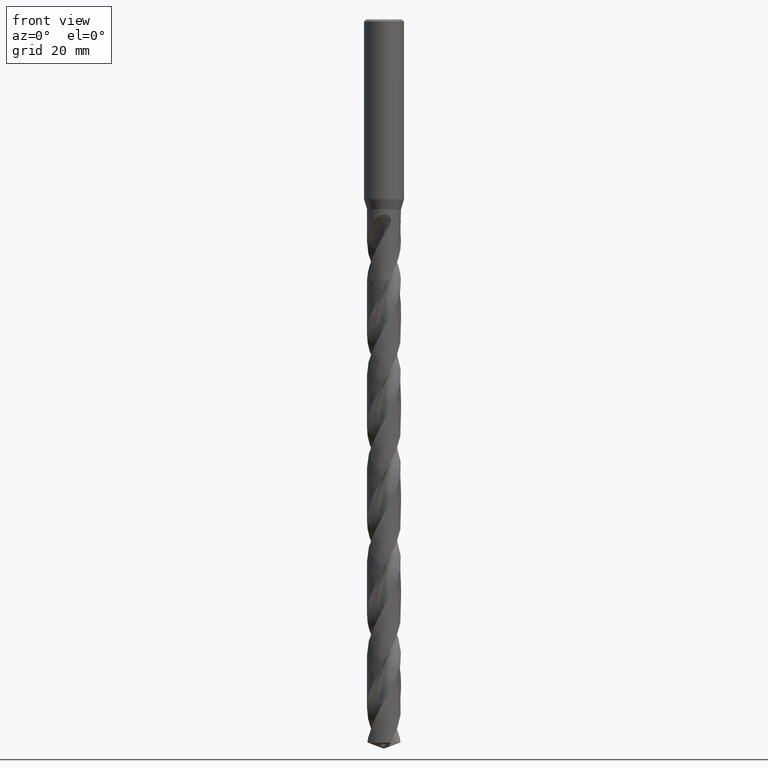
[diagram: clean part render]
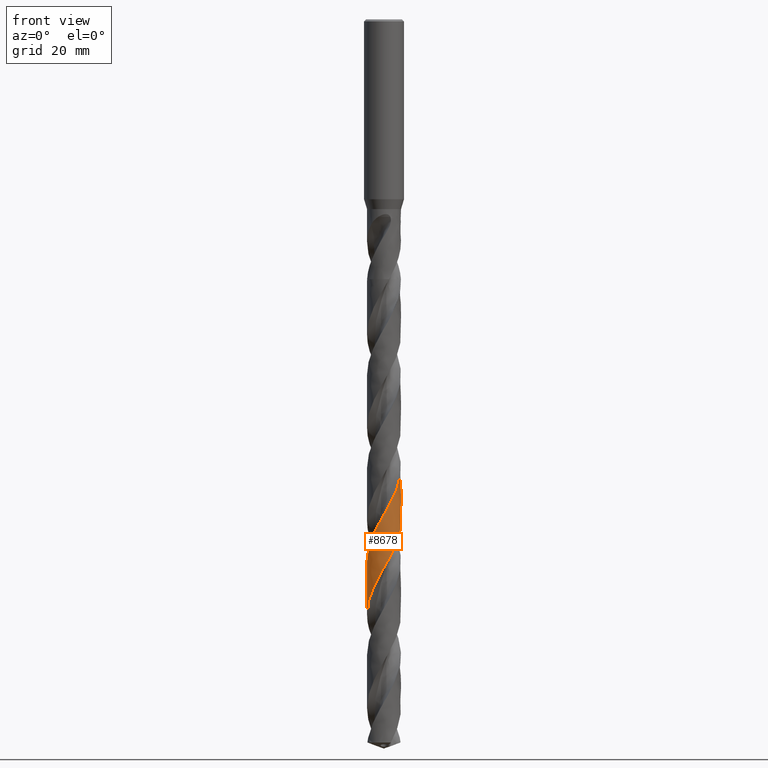
[diagram: same view with one face highlighted and labeled with its STEP entity id]
A machine part, front view. The second image highlights one B-rep face of the part: STEP entity #8678.
In plain terms, the highlighted face is a freeform B-spline surface patch.
Its self-contained STEP definition (entity closure, byte-faithful):
#4107 = VERTEX_POINT('', #4108);
#4108 = CARTESIAN_POINT('', (-3.4, 5.21310176373924E-15, -81.7364126761905));
#4283 = EDGE_CURVE('', #4284, #4107, #4286, .T.);
#4284 = VERTEX_POINT('', #4285);
#4285 = CARTESIAN_POINT('', (-3.4, 7.50227947379985E-15, -119.12152178119));
#4286 = B_SPLINE_CURVE_WITH_KNOTS('', 3, (#4287, #4288, #4289, #4290, #4291, #4292, #4293, #4294, #4295, #4296, #4297, #4298, #4299, #4300, #4301, #4302, #4303, #4304, #4305, #4306, #4307, #4308, #4309, #4310, #4311, #4312, #4313, #4314, #4315, #4316, #4317, #4318, #4319, #4320, #4321, #4322, #4323, #4324, #4325, #4326, #4327, #4328, #4329, #4330, #4331, #4332, #4333, #4334, #4335, #4336, #4337, #4338, #4339, #4340, #4341, #4342, #4343, #4344, #4345, #4346, #4347, #4348, #4349, #4350, #4351, #4352, #4353, #4354, #4355, #4356, #4357, #4358, #4359, #4360, #4361, #4362, #4363, #4364, #4365, #4366, #4367, #4368, #4369, #4370, #4371, #4372, #4373, #4374, #4375, #4376, #4377, #4378, #4379, #4380, #4381, #4382, #4383, #4384, #4385, #4386, #4387, #4388, #4389, #4390, #4391, #4392, #4393, #4394, #4395, #4396, #4397, #4398, #4399, #4400, #4401, #4402, #4403, #4404, #4405, #4406, #4407, #4408, #4409, #4410, #4411, #4412, #4413, #4414, #4415, #4416, #4417, #4418, #4419, #4420, #4421, #4422, #4423, #4424, #4425, #4426, #4427, #4428, #4429, #4430, #4431, #4432, #4433, #4434, #4435, #4436, #4437, #4438, #4439, #4440, #4441, #4442, #4443, #4444, #4445, #4446, #4447, #4448, #4449, #4450, #4451, #4452, #4453, #4454, #4455, #4456, #4457, #4458, #4459, #4460, #4461, #4462, #4463, #4464, #4465, #4466, #4467, #4468, #4469, #4470, #4471, #4472, #4473, #4474, #4475, #4476, #4477, #4478, #4479, #4480, #4481, #4482, #4483, #4484, #4485, #4486, #4487, #4488, #4489, #4490, #4491, #4492, #4493, #4494, #4495, #4496, #4497), .UNSPECIFIED., .F., .U., (4, 3, 3, 3, 3, 3, 3, 3, 3, 3, 3, 3, 3, 3, 3, 3, 3, 3, 3, 3, 3, 3, 3, 3, 3, 3, 3, 3, 3, 3, 3, 3, 3, 3, 3, 3, 3, 3, 3, 3, 3, 3, 3, 3, 3, 3, 3, 3, 3, 3, 3, 3, 3, 3, 3, 3, 3, 3, 3, 3, 3, 3, 3, 3, 3, 3, 3, 3, 3, 3, 4), (0., 0.66658580982563, 1.33294409793713, 1.99908385306702, 2.66501256522958, 3.33073639424071, 3.99626030288841, 4.6615881597968, 5.32672281681218, 5.99166616440956, 6.65641916756324, 7.32098188365318, 7.98535346322285, 8.64953213370615, 9.31351516605572, 9.977298852119, 10.6408784725108, 10.7721836667476, 10.8305783729599, 11.4971489743084, 12.1634921139439, 12.8296166732284, 13.4955300530899, 14.1612383313868, 14.8267463941927, 15.4920580370311, 16.1571760408012, 16.8221022258215, 17.4868374863729, 18.1513818072585, 18.8157342631383, 19.4798930006997, 20.1438552031119, 20.8076170453186, 21.4711736717231, 21.5295469710346, 21.5684694801875, 22.2350540671552, 22.9014100336071, 23.5675463777829, 24.2334705903811, 24.899188825106, 25.5647060321419, 26.2300260611324, 26.895151738506, 27.5600849226494, 28.2248265393677, 28.8893765991891, 29.5537341973101, 30.2178974966643, 30.8818637151456, 31.545629099832, 32.20918882212, 32.2967393413711, 32.3551321229246, 33.021710673829, 33.6880602789081, 34.3541899032365, 35.020107005298, 35.6858177068066, 36.3513269255259, 37.0166384776333, 37.6817551544363, 38.3466787769185, 39.011410230528, 39.6759494817411, 40.340295577193, 41.0044466295966, 41.6683998167285, 42.3321513144244, 43.0541904463072), .UNSPECIFIED.);
#4287 = CARTESIAN_POINT('', (-3.4, 7.90531320183728E-15, -119.12152178119));
#4288 = CARTESIAN_POINT('', (-3.4, -0.11006032610874, -118.928499858597));
#4289 = CARTESIAN_POINT('', (-3.39464964595603, -0.220155190679692, -118.735423754771));
#4290 = CARTESIAN_POINT('', (-3.38397639984471, -0.32970247996415, -118.542405073777));
#4291 = CARTESIAN_POINT('', (-3.37330679676812, -0.439212378133061, -118.349452274686));
#4292 = CARTESIAN_POINT('', (-3.3573118537969, -0.548237735956381, -118.156445132481));
#4293 = CARTESIAN_POINT('', (-3.33607517863566, -0.656203019263993, -117.963495548049));
#4294 = CARTESIAN_POINT('', (-3.31484546806694, -0.7641328952304, -117.77060924166));
#4295 = CARTESIAN_POINT('', (-3.28836544140408, -0.871064585705377, -117.577668506675));
#4296 = CARTESIAN_POINT('', (-3.25677389254169, -0.97643423376019, -117.384785388599));
#4297 = CARTESIAN_POINT('', (-3.22519235235115, -1.08177049914565, -117.19196337876));
#4298 = CARTESIAN_POINT('', (-3.18848471738631, -1.18560514080877, -116.999086927459));
#4299 = CARTESIAN_POINT('', (-3.14684357022811, -1.28739098354539, -116.806268082306));
#4300 = CARTESIAN_POINT('', (-3.1052152346056, -1.38914551031103, -116.613508560818));
#4301 = CARTESIAN_POINT('', (-3.05863296082736, -1.48890984455532, -116.420694648658));
#4302 = CARTESIAN_POINT('', (-3.00734128226978, -1.58615838173744, -116.227938271605));
#4303 = CARTESIAN_POINT('', (-2.95606500687275, -1.68337771467291, -116.035239780304));
#4304 = CARTESIAN_POINT('', (-2.90005318659365, -1.77813767061081, -115.842487001581));
#4305 = CARTESIAN_POINT('', (-2.83960002493059, -1.86993895579888, -115.649791638515));
#4306 = CARTESIAN_POINT('', (-2.77916467171488, -1.96171319792899, -115.457153040142));
#4307 = CARTESIAN_POINT('', (-2.71425628596443, -2.05058258998615, -115.264460296585));
#4308 = CARTESIAN_POINT('', (-2.64521601627747, -2.13607870342577, -115.071824814993));
#4309 = CARTESIAN_POINT('', (-2.57619579471052, -2.22154999024826, -114.879245271469));
#4310 = CARTESIAN_POINT('', (-2.50300665650473, -2.303698766655, -114.686611748174));
#4311 = CARTESIAN_POINT('', (-2.42603352624642, -2.38209179704065, -114.494035315438));
#4312 = CARTESIAN_POINT('', (-2.3490825353919, -2.46046227962358, -114.301514272516));
#4313 = CARTESIAN_POINT('', (-2.26830545807678, -2.53512424434089, -114.108939420211));
#4314 = CARTESIAN_POINT('', (-2.18412738489569, -2.6056837042413, -113.916421488279));
#4315 = CARTESIAN_POINT('', (-2.09997340824638, -2.67622296602831, -113.723958665881));
#4316 = CARTESIAN_POINT('', (-2.01237165368817, -2.74270290168547, -113.531442188805));
#4317 = CARTESIAN_POINT('', (-1.92178333441844, -2.80477250691593, -113.338982484547));
#4318 = CARTESIAN_POINT('', (-1.83122094626178, -2.8668243445803, -113.146577872319));
#4319 = CARTESIAN_POINT('', (-1.73762101424358, -2.92450446967839, -112.954119721253));
#4320 = CARTESIAN_POINT('', (-1.64147641031456, -2.97750821902825, -112.76171824204));
#4321 = CARTESIAN_POINT('', (-1.54535945877197, -3.03049672383916, -112.569372099891));
#4322 = CARTESIAN_POINT('', (-1.44664328498734, -3.07884242374581, -112.376972470109));
#4323 = CARTESIAN_POINT('', (-1.3458475552327, -3.12228992216837, -112.184629484379));
#4324 = CARTESIAN_POINT('', (-1.24508109285304, -3.16572480503438, -111.992342347982));
#4325 = CARTESIAN_POINT('', (-1.1421777282993, -3.20428958311069, -111.800001682075));
#4326 = CARTESIAN_POINT('', (-1.03767868519966, -3.23778055869795, -111.607717734853));
#4327 = CARTESIAN_POINT('', (-0.933210422970709, -3.2712616693012, -111.415490426114));
#4328 = CARTESIAN_POINT('', (-0.827087230274705, -3.2996912809931, -111.223209446193));
#4329 = CARTESIAN_POINT('', (-0.719866439253546, -3.32291924512721, -111.03098534661));
#4330 = CARTESIAN_POINT('', (-0.612677838914171, -3.3461402355765, -110.838818958081));
#4331 = CARTESIAN_POINT('', (-0.504331246142023, -3.36417595083137, -110.646598738088));
#4332 = CARTESIAN_POINT('', (-0.395394829386861, -3.37693099261668, -110.454435533144));
#4333 = CARTESIAN_POINT('', (-0.28649190273322, -3.38968211314538, -110.262331404545));
#4334 = CARTESIAN_POINT('', (-0.176938024452113, -3.3971630204216, -110.070173361897));
#4335 = CARTESIAN_POINT('', (-0.0673070987560432, -3.39933372213721, -109.878072391263));
#4336 = CARTESIAN_POINT('', (-0.0456139822851335, -3.39976324770074, -109.840060592096));
#4337 = CARTESIAN_POINT('', (-0.0239164068278911, -3.39998511604062, -109.802048423758));
#4338 = CARTESIAN_POINT('', (-0.00221885828383361, -3.39999927598049, -109.76403673007));
#4339 = CARTESIAN_POINT('', (0.00743058460471498, -3.40000557326015, -109.747131978521));
#4340 = CARTESIAN_POINT('', (0.0170800911525681, -3.39997079147597, -109.730227198097));
#4341 = CARTESIAN_POINT('', (0.0267292698135637, -3.39989493163174, -109.713322464764));
#4342 = CARTESIAN_POINT('', (0.136873822972103, -3.39902899796641, -109.52035637255));
#4343 = CARTESIAN_POINT('', (0.2470110350456, -3.3928040566323, -109.32733600693));
#4344 = CARTESIAN_POINT('', (0.356557255405211, -3.38125227151396, -109.13437314252));
#4345 = CARTESIAN_POINT('', (0.466066094021772, -3.3697044283469, -108.941476125094));
#4346 = CARTESIAN_POINT('', (0.575047505542613, -3.35282673941069, -108.748524684755));
#4347 = CARTESIAN_POINT('', (0.682924867343296, -3.33070767639015, -108.555630880783));
#4348 = CARTESIAN_POINT('', (0.7907668421636, -3.30859586907957, -108.36280035171));
#4349 = CARTESIAN_POINT('', (0.897567101936991, -3.28123351061016, -108.169915298512));
#4350 = CARTESIAN_POINT('', (1.0027612464826, -3.24876436242345, -107.977087958989));
#4351 = CARTESIAN_POINT('', (1.10792204165168, -3.21630550783106, -107.784321750926));
#4352 = CARTESIAN_POINT('', (1.21153745768228, -3.17872467821462, -107.591500983835));
#4353 = CARTESIAN_POINT('', (1.31306035098218, -3.13621946213567, -107.398737943303));
#4354 = CARTESIAN_POINT('', (1.41455197519379, -3.09372733767882, -107.206034273857));
#4355 = CARTESIAN_POINT('', (1.51400985760778, -3.04628979165857, -107.01327607053));
#4356 = CARTESIAN_POINT('', (1.61090901285292, -2.99415633397944, -106.820575549132));
#4357 = CARTESIAN_POINT('', (1.70777902513472, -2.94203855572952, -106.627932983495));
#4358 = CARTESIAN_POINT('', (1.80214675975931, -2.88519814310793, -106.435235960693));
#4359 = CARTESIAN_POINT('', (1.89351412581562, -2.82393418041864, -106.242596526828));
#4360 = CARTESIAN_POINT('', (1.98485452544422, -2.76268829935184, -106.05001394912));
#4361 = CARTESIAN_POINT('', (2.07324827077654, -2.69698663989028, -105.857377031797));
#4362 = CARTESIAN_POINT('', (2.15822870063941, -2.62717507519698, -105.664797573484));
#4363 = CARTESIAN_POINT('', (2.24318439693353, -2.55738382917162, -105.472274165456));
#4364 = CARTESIAN_POINT('', (2.32477732257817, -2.48344516486581, -105.279696563125));
#4365 = CARTESIAN_POINT('', (2.40257654166428, -2.40574852414887, -105.08717626673));
#4366 = CARTESIAN_POINT('', (2.48035332360561, -2.32807429099331, -104.894711492817));
#4367 = CARTESIAN_POINT('', (2.55438331273158, -2.24659956440051, -104.702192682213));
#4368 = CARTESIAN_POINT('', (2.6242753118049, -2.16175370656587, -104.509731017519));
#4369 = CARTESIAN_POINT('', (2.69414724234566, -2.07693221106, -104.317324615563));
#4370 = CARTESIAN_POINT('', (2.75992398585721, -1.98869242542605, -104.124864328903));
#4371 = CARTESIAN_POINT('', (2.82125776897569, -1.89749956547934, -103.93246103986));
#4372 = CARTESIAN_POINT('', (2.88257393447593, -1.80633289992195, -103.74011301706));
#4373 = CARTESIAN_POINT('', (2.93948535037092, -1.71216182342775, -103.547711235461));
#4374 = CARTESIAN_POINT('', (2.99169097445581, -1.61548293502582, -103.35536633616));
#4375 = CARTESIAN_POINT('', (3.04388152590813, -1.51883195942807, -103.163076970033));
#4376 = CARTESIAN_POINT('', (3.09139944366958, -1.41961824187973, -102.970733921859));
#4377 = CARTESIAN_POINT('', (3.133993293089, -1.31836491112028, -102.778447697516));
#4378 = CARTESIAN_POINT('', (3.17657472258161, -1.21714110478689, -102.586217541851));
#4379 = CARTESIAN_POINT('', (3.21425977936056, -1.11381988044882, -102.393933705968));
#4380 = CARTESIAN_POINT('', (3.24684902622502, -1.0089456877859, -102.201706718905));
#4381 = CARTESIAN_POINT('', (3.27942862941226, -0.904102529067012, -102.009536614869));
#4382 = CARTESIAN_POINT('', (3.30693433480173, -0.797646571346202, -101.817312736362));
#4383 = CARTESIAN_POINT('', (3.32922054088451, -0.690138094987558, -101.625145830031));
#4384 = CARTESIAN_POINT('', (3.351500021782, -0.582662060867877, -101.433036912846));
#4385 = CARTESIAN_POINT('', (3.36857595629652, -0.474072486966904, -101.240874075601));
#4386 = CARTESIAN_POINT('', (3.38035778379481, -0.364940068420678, -101.048768341683));
#4387 = CARTESIAN_POINT('', (3.39213596869567, -0.255841390435272, -100.856722001256));
#4388 = CARTESIAN_POINT('', (3.39863003225758, -0.146138170573308, -100.664621647261));
#4389 = CARTESIAN_POINT('', (3.3998050797502, -0.0364063141107068, -100.472578467246));
#4390 = CARTESIAN_POINT('', (3.39990844907282, -0.0267531658390987, -100.455684364193));
#4391 = CARTESIAN_POINT('', (3.39997070583853, -0.0170995359703147, -100.438790234737));
#4392 = CARTESIAN_POINT('', (3.39999184701573, -0.00744581940258894, -100.4218961534));
#4393 = CARTESIAN_POINT('', (3.40000594366048, -0.00100885462759771, -100.410631413473));
#4394 = CARTESIAN_POINT('', (3.40000176028553, 0.00542816466162031, -100.399366666988));
#4395 = CARTESIAN_POINT('', (3.39997929683326, 0.0118651213738368, -100.388101936031));
#4396 = CARTESIAN_POINT('', (3.39959458907977, 0.122104060864491, -100.195182820694));
#4397 = CARTESIAN_POINT('', (3.39384198367998, 0.232358767537895, -100.00220902303));
#4398 = CARTESIAN_POINT('', (3.38275116328019, 0.342044686155215, -99.809293109217));
#4399 = CARTESIAN_POINT('', (3.37166414673236, 0.451692985463932, -99.6164433603533));
#4400 = CARTESIAN_POINT('', (3.3552362383185, 0.56083570095516, -99.4235388664109));
#4401 = CARTESIAN_POINT('', (3.33355362705547, 0.668894771653575, -99.230692298584));
#4402 = CARTESIAN_POINT('', (3.31187816209963, 0.77691822748508, -99.0379092904824));
#4403 = CARTESIAN_POINT('', (3.28493910184324, 0.883920363589971, -98.8450715299651));
#4404 = CARTESIAN_POINT('', (3.25287820032418, 0.989334834045458, -98.6522916839855));
#4405 = CARTESIAN_POINT('', (3.2208275086213, 1.09471573519022, -98.4595732288806));
#4406 = CARTESIAN_POINT('', (3.18363998380628, 1.19857000088782, -98.2668000642874));
#4407 = CARTESIAN_POINT('', (3.14151153763768, 1.30034812988267, -98.074084754609));
#4408 = CARTESIAN_POINT('', (3.09939612227286, 1.40209477775375, -97.8814290539505));
#4409 = CARTESIAN_POINT('', (3.05231882111048, 1.5018245934524, -97.688718729629));
#4410 = CARTESIAN_POINT('', (3.00052783062822, 1.59900992417981, -97.4960661605912));
#4411 = CARTESIAN_POINT('', (2.94875247952999, 1.69616590774287, -97.3034717670678));
#4412 = CARTESIAN_POINT('', (2.89223665301332, 1.79083453099607, -97.1108228689602));
#4413 = CARTESIAN_POINT('', (2.83127849435405, 1.88251483059451, -96.9182315968358));
#4414 = CARTESIAN_POINT('', (2.77033839625046, 1.97416796734564, -96.7256973852504));
#4415 = CARTESIAN_POINT('', (2.70492355022435, 2.06288724367997, -96.5331088094233));
#4416 = CARTESIAN_POINT('', (2.63537924549418, 2.1482030240223, -96.3405777133163));
#4417 = CARTESIAN_POINT('', (2.56585525587174, 2.23349388213303, -96.1481028589098));
#4418 = CARTESIAN_POINT('', (2.49216401440269, 2.31543253839993, -95.9555737874641));
#4419 = CARTESIAN_POINT('', (2.41469469650567, 2.39358507738234, -95.7631020476573));
#4420 = CARTESIAN_POINT('', (2.33724779891169, 2.47171499833151, -95.5706860108675));
#4421 = CARTESIAN_POINT('', (2.25597998760722, 2.54610640046618, -95.378215894212));
#4422 = CARTESIAN_POINT('', (2.17132061271124, 2.61636518796886, -95.1858029769501));
#4423 = CARTESIAN_POINT('', (2.08668562820343, 2.68660373389637, -94.9934454939003));
#4424 = CARTESIAN_POINT('', (1.99861163327056, 2.75275303611592, -94.8010340386783));
#4425 = CARTESIAN_POINT('', (1.90756400082745, 2.8144625744087, -94.6086796866815));
#4426 = CARTESIAN_POINT('', (1.81654260534843, 2.87615433002116, -94.4163807649479));
#4427 = CARTESIAN_POINT('', (1.72249607081979, 2.93344494828621, -94.2240279271626));
#4428 = CARTESIAN_POINT('', (1.62592121744373, 2.98603084288598, -94.0317321554204));
#4429 = CARTESIAN_POINT('', (1.52937433330825, 3.03860150797738, -93.8394920748495));
#4430 = CARTESIAN_POINT('', (1.43024426493502, 3.08650085693175, -93.6471980579526));
#4431 = CARTESIAN_POINT('', (1.32905430420926, 3.12947514073253, -93.4549611545691));
#4432 = CARTESIAN_POINT('', (1.22789393761268, 3.17243685622617, -93.2627804730055));
#4433 = CARTESIAN_POINT('', (1.12461625129976, 3.21050130718831, -93.0705457523966));
#4434 = CARTESIAN_POINT('', (1.01976577027006, 3.2434669373659, -92.8783682641489));
#4435 = CARTESIAN_POINT('', (0.914946402107235, 3.27642278546854, -92.6862478017971));
#4436 = CARTESIAN_POINT('', (0.808494968583843, 3.30430178605987, -92.4940731806085));
#4437 = CARTESIAN_POINT('', (0.700972037476663, 3.3269562970794, -92.3019558926381));
#4438 = CARTESIAN_POINT('', (0.593481629467355, 3.34960395565478, -92.1098967155219));
#4439 = CARTESIAN_POINT('', (0.484859070109891, 3.3670432130078, -91.9177833172498));
#4440 = CARTESIAN_POINT('', (0.375675839145722, 3.37918150798137, -91.7257272951133));
#4441 = CARTESIAN_POINT('', (0.266526437732854, 3.39131604200128, -91.53373078));
#4442 = CARTESIAN_POINT('', (0.15675471349458, 3.39815979657419, -91.3416800385243));
#4443 = CARTESIAN_POINT('', (0.0469378458908526, 3.39967599024164, -91.1496866602353));
#4444 = CARTESIAN_POINT('', (0.0324485339897481, 3.39987603786119, -91.1243549238484));
#4445 = CARTESIAN_POINT('', (0.0179578218246788, 3.3999834557675, -91.0990230874916));
#4446 = CARTESIAN_POINT('', (0.0034670441010557, 3.39999823229443, -91.0736914039823));
#4447 = CARTESIAN_POINT('', (-0.00619773944783694, 3.40000808766155, -91.056796159109));
#4448 = CARTESIAN_POINT('', (-0.0158626062729844, 3.39997673324266, -91.039900887577));
#4449 = CARTESIAN_POINT('', (-0.0255271602587759, 3.39990416983908, -91.0230056643375));
#4450 = CARTESIAN_POINT('', (-0.135852173378516, 3.39907582758301, -90.8301394722396));
#4451 = CARTESIAN_POINT('', (-0.246171377798619, 3.39287093446242, -90.6372183933232));
#4452 = CARTESIAN_POINT('', (-0.355898943401339, 3.38132162653693, -90.4443553912766));
#4453 = CARTESIAN_POINT('', (-0.465588821520677, 3.36977628538449, -90.2515586307542));
#4454 = CARTESIAN_POINT('', (-0.574750459675094, 3.35288357936067, -90.0587069566974));
#4455 = CARTESIAN_POINT('', (-0.68280465645771, 3.33073232204569, -89.8659133689172));
#4456 = CARTESIAN_POINT('', (-0.790823181510138, 3.30858837748391, -89.6731834277241));
#4457 = CARTESIAN_POINT('', (-0.897796857286214, 3.28117667550689, -89.4803985921976));
#4458 = CARTESIAN_POINT('', (-1.00315838626338, 3.24864175495999, -89.2876718078002));
#4459 = CARTESIAN_POINT('', (-1.1084863006554, 3.2161172143674, -89.0950065110347));
#4460 = CARTESIAN_POINT('', (-1.21226340034307, 3.17845410136986, -88.9022863805656));
#4461 = CARTESIAN_POINT('', (-1.31393947140642, 3.13585125053473, -88.7096242266731));
#4462 = CARTESIAN_POINT('', (-1.41558402804068, 3.09326160442426, -88.5170217882842));
#4463 = CARTESIAN_POINT('', (-1.51518716232656, 3.04571084696029, -88.3243646114991));
#4464 = CARTESIAN_POINT('', (-1.61222079190436, 2.99345020305187, -88.1317653047719));
#4465 = CARTESIAN_POINT('', (-1.70922505346046, 2.94120537625481, -87.9392242898004));
#4466 = CARTESIAN_POINT('', (-1.80371720544274, 2.88422343004413, -87.7466286573289));
#4467 = CARTESIAN_POINT('', (-1.89519617488561, 2.82280560058588, -87.5540907662329));
#4468 = CARTESIAN_POINT('', (-1.98664797364858, 2.76140601318035, -87.3616100618919));
#4469 = CARTESIAN_POINT('', (-2.07514126618042, 2.69553765831478, -87.169074875036));
#4470 = CARTESIAN_POINT('', (-2.16020665558941, 2.62554893406069, -86.9765972909485));
#4471 = CARTESIAN_POINT('', (-2.24524712863613, 2.55558071008786, -86.7841760851512));
#4472 = CARTESIAN_POINT('', (-2.32691112813739, 2.48145385559987, -86.5917005319249));
#4473 = CARTESIAN_POINT('', (-2.40476534463138, 2.40356061651458, -86.3992824476882));
#4474 = CARTESIAN_POINT('', (-2.48259696344677, 2.32568998643444, -86.2069202140172));
#4475 = CARTESIAN_POINT('', (-2.55666644186113, 2.24400969352013, -86.0145037515473));
#4476 = CARTESIAN_POINT('', (-2.62658066627173, 2.15895206143342, -85.8221446464644));
#4477 = CARTESIAN_POINT('', (-2.69647468484629, 2.07391901176297, -85.6298411348829));
#4478 = CARTESIAN_POINT('', (-2.76225676663862, 1.98546079211173, -85.4374834774697));
#4479 = CARTESIAN_POINT('', (-2.82357774829002, 1.89404559062381, -85.2451831080433));
#4480 = CARTESIAN_POINT('', (-2.88488099941347, 1.80265682119455, -85.052938340908));
#4481 = CARTESIAN_POINT('', (-2.9417616263641, 1.70825927352961, -84.8606394532966));
#4482 = CARTESIAN_POINT('', (-2.99391776189884, 1.61135236214388, -84.6683978492699));
#4483 = CARTESIAN_POINT('', (-3.04605873766981, 1.51447361783512, -84.4762121224142));
#4484 = CARTESIAN_POINT('', (-3.09350839311872, 1.41503046604869, -84.2839722216399));
#4485 = CARTESIAN_POINT('', (-3.1360150298586, 1.31354852689233, -84.0917896836236));
#4486 = CARTESIAN_POINT('', (-3.17850918722357, 1.21209638146381, -83.8996635678071));
#4487 = CARTESIAN_POINT('', (-3.21608784399081, 1.10854792128336, -83.7074831719573));
#4488 = CARTESIAN_POINT('', (-3.24855174534052, 1.00344982826508, -83.5153602385161));
#4489 = CARTESIAN_POINT('', (-3.28100597497679, 0.898383046290656, -83.3232945427413));
#4490 = CARTESIAN_POINT('', (-3.30836715852917, 0.791707184567166, -83.1311744896937));
#4491 = CARTESIAN_POINT('', (-3.33049015650675, 0.683984880982104, -82.9391119596156));
#4492 = CARTESIAN_POINT('', (-3.35260643416869, 0.576295300262275, -82.7471077724812));
#4493 = CARTESIAN_POINT('', (-3.36950036075725, 0.467498346248501, -82.5550492005646));
#4494 = CARTESIAN_POINT('', (-3.38108208855323, 0.358167433563763, -82.3630481627467));
#4495 = CARTESIAN_POINT('', (-3.39368087094776, 0.239235577956832, -82.1541864680493));
#4496 = CARTESIAN_POINT('', (-3.4, 0.11960379053183, -81.9452706575994));
#4497 = CARTESIAN_POINT('', (-3.4, 4.28567522539514E-15, -81.7364126761905));
#4990 = VERTEX_POINT('', #4991);
#4991 = CARTESIAN_POINT('', (-3.4, 4.56515206482374E-15, -71.1545910543705));
#5103 = EDGE_CURVE('', #4990, #4107, #5104, .T.);
#5104 = LINE('', #5105, #5106);
#5105 = CARTESIAN_POINT('', (-3.4, 4.56515206482374E-15, -71.1545910543705));
#5106 = VECTOR('', #5107, 10.5818216218199);
#5107 = DIRECTION('', (0., 6.47949698915501E-16, -10.5818216218199));
#5290 = VERTEX_POINT('', #5291);
#5291 = CARTESIAN_POINT('', (-3.4, 6.85002689326418E-15, -108.469428769723));
#5496 = EDGE_CURVE('', #5290, #4990, #5497, .T.);
#5497 = B_SPLINE_CURVE_WITH_KNOTS('', 3, (#5498, #5499, #5500, #5501, #5502, #5503, #5504, #5505, #5506, #5507, #5508, #5509, #5510, #5511, #5512, #5513, #5514, #5515, #5516, #5517, #5518, #5519, #5520, #5521, #5522, #5523, #5524, #5525, #5526, #5527, #5528, #5529, #5530, #5531, #5532, #5533, #5534, #5535, #5536, #5537, #5538, #5539, #5540, #5541, #5542, #5543, #5544, #5545, #5546, #5547, #5548, #5549, #5550, #5551, #5552, #5553, #5554, #5555, #5556, #5557, #5558, #5559, #5560, #5561, #5562, #5563, #5564, #5565, #5566, #5567, #5568, #5569, #5570, #5571, #5572, #5573, #5574, #5575, #5576, #5577, #5578, #5579, #5580, #5581, #5582, #5583, #5584, #5585, #5586, #5587, #5588, #5589, #5590, #5591, #5592, #5593, #5594, #5595, #5596, #5597, #5598, #5599, #5600, #5601, #5602, #5603, #5604, #5605, #5606, #5607, #5608, #5609, #5610, #5611, #5612, #5613, #5614, #5615, #5616, #5617, #5618, #5619, #5620, #5621, #5622, #5623, #5624, #5625, #5626, #5627, #5628, #5629, #5630, #5631, #5632, #5633, #5634, #5635, #5636, #5637, #5638, #5639, #5640, #5641, #5642, #5643, #5644, #5645, #5646, #5647, #5648, #5649, #5650, #5651, #5652, #5653, #5654, #5655, #5656, #5657, #5658, #5659, #5660, #5661, #5662, #5663, #5664, #5665, #5666, #5667, #5668, #5669, #5670, #5671, #5672, #5673, #5674, #5675, #5676, #5677, #5678, #5679, #5680, #5681, #5682, #5683, #5684, #5685, #5686, #5687, #5688, #5689, #5690, #5691, #5692, #5693, #5694, #5695, #5696, #5697, #5698, #5699, #5700, #5701, #5702, #5703, #5704, #5705), .UNSPECIFIED., .F., .U., (4, 3, 3, 3, 3, 3, 3, 3, 3, 3, 3, 3, 3, 3, 3, 3, 3, 3, 3, 3, 3, 3, 3, 3, 3, 3, 3, 3, 3, 3, 3, 3, 3, 3, 3, 3, 3, 3, 3, 3, 3, 3, 3, 3, 3, 3, 3, 3, 3, 3, 3, 3, 3, 3, 3, 3, 3, 3, 3, 3, 3, 3, 3, 3, 3, 3, 3, 3, 3, 4), (0., 0.66658661883252, 1.33294570828546, 1.99908619455446, 2.66501551221135, 3.33073976862755, 3.99626387643609, 4.66159165573997, 5.32672591087007, 5.99166848516749, 6.65642029621203, 7.32098135304774, 7.98535075619746, 8.64952668056032, 9.31350634077815, 9.97728595357775, 10.6408607128706, 10.7721656876321, 11.4387583734093, 12.1051222458404, 12.7712662964767, 13.43719800759, 14.1029235230777, 14.7684477821713, 15.4337746225566, 16.0989068577608, 16.7638463323236, 17.4285939571962, 18.0931497269334, 18.7575127194724, 19.4216810786186, 20.0856519842102, 20.7494216434225, 21.4129851958297, 21.5005357805068, 21.5589163358506, 22.2255046416933, 22.8918632907549, 23.558001261792, 24.2239260204971, 24.8896436901937, 25.5551591852654, 26.2204763139131, 26.8855978550846, 27.5505256130792, 28.2152604522499, 28.8798023133456, 29.5441502122572, 30.2083022217099, 30.8722554584352, 31.5360060428173, 32.1995490029345, 32.2579221839238, 32.3163127669643, 32.9829016559546, 33.6492598368762, 34.3153963116623, 34.9813185605525, 35.6470327133799, 36.3125436833602, 36.9778552700069, 37.642970236038, 38.3078903617809, 38.9726164795023, 39.6371484891961, 40.3014853575112, 40.9656251214448, 41.6295648561054, 42.2933006097172, 42.9931814944264), .UNSPECIFIED.);
#5498 = CARTESIAN_POINT('', (-3.4, 6.23907007522265E-15, -108.469428769723));
#5499 = CARTESIAN_POINT('', (-3.4, -0.110080135777376, -108.276417833426));
#5500 = CARTESIAN_POINT('', (-3.39464771182658, -0.22019707393791, -108.083353942724));
#5501 = CARTESIAN_POINT('', (-3.38396999892869, -0.329768170615356, -107.890348712113));
#5502 = CARTESIAN_POINT('', (-3.37329593070851, -0.439301866836593, -107.697409360953));
#5503 = CARTESIAN_POINT('', (-3.35729399860667, -0.548352770020721, -107.504416781665));
#5504 = CARTESIAN_POINT('', (-3.33604724159104, -0.656345032641384, -107.311483098507));
#5505 = CARTESIAN_POINT('', (-3.31480745470428, -0.764301867738324, -107.118612708427));
#5506 = CARTESIAN_POINT('', (-3.28831431497242, -0.871261695963828, -106.925688926498));
#5507 = CARTESIAN_POINT('', (-3.25670606349552, -0.976660440476404, -106.732824162338));
#5508 = CARTESIAN_POINT('', (-3.22510783193294, -1.08202577325819, -106.54002053691));
#5509 = CARTESIAN_POINT('', (-3.18838003021736, -1.18589006220038, -106.347163469753));
#5510 = CARTESIAN_POINT('', (-3.14671472875168, -1.2877058731936, -106.154365433316));
#5511 = CARTESIAN_POINT('', (-3.105062257384, -1.38949033179556, -105.961626765649));
#5512 = CARTESIAN_POINT('', (-3.05845200942594, -1.48928454394976, -105.768834703636));
#5513 = CARTESIAN_POINT('', (-3.00712809800835, -1.58656251127041, -105.5761015939));
#5514 = CARTESIAN_POINT('', (-2.95581961701756, -1.6838112321733, -105.383426428971));
#5515 = CARTESIAN_POINT('', (-2.89977147104846, -1.77859984873674, -105.190697995308));
#5516 = CARTESIAN_POINT('', (-2.8392776006956, -1.87042848197632, -104.998028363849));
#5517 = CARTESIAN_POINT('', (-2.77880157593385, -1.96223002592186, -104.805415569611));
#5518 = CARTESIAN_POINT('', (-2.71384820831134, -2.05112527659861, -104.612749688943));
#5519 = CARTESIAN_POINT('', (-2.64475860766292, -2.13664501197388, -104.42014241107));
#5520 = CARTESIAN_POINT('', (-2.575689103136, -2.22213987218739, -104.227591156958));
#5521 = CARTESIAN_POINT('', (-2.50244628668077, -2.3043100205344, -104.034987031308));
#5522 = CARTESIAN_POINT('', (-2.42541532414197, -2.38272123955306, -103.842441284585));
#5523 = CARTESIAN_POINT('', (-2.34840656066888, -2.46110986173862, -103.649951026403));
#5524 = CARTESIAN_POINT('', (-2.26756735272704, -2.53578696794002, -103.457408117433));
#5525 = CARTESIAN_POINT('', (-2.18332334579294, -2.60635745202293, -103.264923366591));
#5526 = CARTESIAN_POINT('', (-2.09910350735312, -2.6769076903649, -103.072493837085));
#5527 = CARTESIAN_POINT('', (-2.01143171177239, -2.74339477827105, -102.880011853974));
#5528 = CARTESIAN_POINT('', (-1.92077004216958, -2.80546652895803, -102.687587841506));
#5529 = CARTESIAN_POINT('', (-1.8301343884343, -2.86752046781285, -102.495219046172));
#5530 = CARTESIAN_POINT('', (-1.73645735232832, -2.92519802867923, -102.302797938651));
#5531 = CARTESIAN_POINT('', (-1.64023295202384, -2.9781933891363, -102.110434680648));
#5532 = CARTESIAN_POINT('', (-1.54403630200777, -3.03117346618778, -101.918126898552));
#5533 = CARTESIAN_POINT('', (-1.445237114323, -3.07950523775341, -101.72576685486));
#5534 = CARTESIAN_POINT('', (-1.34435639326077, -3.12293225797469, -101.533464641856));
#5535 = CARTESIAN_POINT('', (-1.2435050508536, -3.16634663130533, -101.34121843143));
#5536 = CARTESIAN_POINT('', (-1.14051421528311, -3.20488459761458, -101.148919881159));
#5537 = CARTESIAN_POINT('', (-1.03592650685006, -3.23834159291536, -100.956679283962));
#5538 = CARTESIAN_POINT('', (-0.931369704109963, -3.271788701666, -100.764495493908));
#5539 = CARTESIAN_POINT('', (-0.825156326722617, -3.30017727436541, -100.572259137483));
#5540 = CARTESIAN_POINT('', (-0.717844966533272, -3.3233565267698, -100.380080997532));
#5541 = CARTESIAN_POINT('', (-0.610565937696585, -3.34652879560243, -100.187960758061));
#5542 = CARTESIAN_POINT('', (-0.502128400271689, -3.36450813200511, -99.9957876789936));
#5543 = CARTESIAN_POINT('', (-0.393101569596632, -3.37719871431666, -99.8036730522758));
#5544 = CARTESIAN_POINT('', (-0.28410838642771, -3.38988538010196, -99.6116177153497));
#5545 = CARTESIAN_POINT('', (-0.174464914761423, -3.39729371689899, -99.4195093822121));
#5546 = CARTESIAN_POINT('', (-0.0647460088723835, -3.39938346679733, -99.2274596164124));
#5547 = CARTESIAN_POINT('', (-0.0430353606494606, -3.39979697643407, -99.1894577344871));
#5548 = CARTESIAN_POINT('', (-0.0213203216429231, -3.40000249729286, -99.1514555284785));
#5549 = CARTESIAN_POINT('', (0.000394597338460946, -3.3999999771019, -99.113453837021));
#5550 = CARTESIAN_POINT('', (0.110634184159373, -3.39998718291135, -98.9205315991644));
#5551 = CARTESIAN_POINT('', (0.220909774332024, -3.39460657884747, -98.7275558834293));
#5552 = CARTESIAN_POINT('', (0.330636737919228, -3.38388524443997, -98.5346393134407));
#5553 = CARTESIAN_POINT('', (0.440326036836174, -3.37316759021747, -98.3417889636294));
#5554 = CARTESIAN_POINT('', (0.549529655798695, -3.35710678093963, -98.1488849556968));
#5555 = CARTESIAN_POINT('', (0.657669483039979, -3.33578639170407, -97.9560402342281));
#5556 = CARTESIAN_POINT('', (0.76577363684233, -3.31447303569229, -97.7632591288625));
#5557 = CARTESIAN_POINT('', (0.872875851347833, -3.28789152373371, -97.5704242937202));
#5558 = CARTESIAN_POINT('', (0.978409573048753, -3.2561810004001, -97.377648781547));
#5559 = CARTESIAN_POINT('', (1.08390965490842, -3.22448058508651, -97.1849347183355));
#5560 = CARTESIAN_POINT('', (1.18790175763789, -3.18763654483439, -96.9921669483372));
#5561 = CARTESIAN_POINT('', (1.28983587409464, -3.14584224300878, -96.7994584482651));
#5562 = CARTESIAN_POINT('', (1.39173842820261, -3.10406088215306, -96.606809617449));
#5563 = CARTESIAN_POINT('', (1.49164187291209, -3.05730869715987, -96.4141071810367));
#5564 = CARTESIAN_POINT('', (1.58901765512857, -3.00583148092, -96.2214638891489));
#5565 = CARTESIAN_POINT('', (1.68636399953871, -2.954369826828, -96.0288788355189));
#5566 = CARTESIAN_POINT('', (1.7812395569942, -2.89815672106083, -95.8362403366808));
#5567 = CARTESIAN_POINT('', (1.87314202151932, -2.83748814397849, -95.6436608043764));
#5568 = CARTESIAN_POINT('', (1.96501722442986, -2.77683756340335, -95.4511383981677));
#5569 = CARTESIAN_POINT('', (2.05397377232632, -2.71169935841495, -95.258562744713));
#5570 = CARTESIAN_POINT('', (2.1395402442134, -2.64241698893101, -95.0660458496263));
#5571 = CARTESIAN_POINT('', (2.22508168828296, -2.5731548842361, -94.8735852648866));
#5572 = CARTESIAN_POINT('', (2.30728455196384, -2.49971092221089, -94.6810716441252));
#5573 = CARTESIAN_POINT('', (2.38571273448275, -2.42247285816102, -94.4886165685172));
#5574 = CARTESIAN_POINT('', (2.46411818788711, -2.34525717831986, -94.2962172679295));
#5575 = CARTESIAN_POINT('', (2.53879695300974, -2.26420445859446, -94.1037651287328));
#5576 = CARTESIAN_POINT('', (2.60935242758673, -2.17974308317453, -93.9113713443402));
#5577 = CARTESIAN_POINT('', (2.67988754535463, -2.0953060767225, -93.7190330697937));
#5578 = CARTESIAN_POINT('', (2.74634326866529, -2.0074126606175, -93.526642110324));
#5579 = CARTESIAN_POINT('', (2.80836635405254, -1.91652769910211, -93.3343093689562));
#5580 = CARTESIAN_POINT('', (2.87037153874034, -1.82566896821311, -93.1420321374132));
#5581 = CARTESIAN_POINT('', (2.92798328879547, -1.73176671376649, -92.9497022980599));
#5582 = CARTESIAN_POINT('', (2.98089519464267, -1.63531765677382, -92.7574306274955));
#5583 = CARTESIAN_POINT('', (3.03379175157648, -1.53889657813874, -92.5652147319249));
#5584 = CARTESIAN_POINT('', (3.08202241753393, -1.43987327253, -92.3729461932126));
#5585 = CARTESIAN_POINT('', (3.12533063429521, -1.33877123749203, -92.1807358981638));
#5586 = CARTESIAN_POINT('', (3.16862616337633, -1.23769882155134, -91.988581913509));
#5587 = CARTESIAN_POINT('', (3.20702748076014, -1.13448977226232, -91.7963751063324));
#5588 = CARTESIAN_POINT('', (3.24033035135814, -1.0296888918831, -91.604226767274));
#5589 = CARTESIAN_POINT('', (3.27362332119817, -0.924919168221994, -91.4121355528468));
#5590 = CARTESIAN_POINT('', (3.30184008971821, -0.818498197418951, -91.219991256463));
#5591 = CARTESIAN_POINT('', (3.32483050483203, -0.71098671867975, -91.0279056655169));
#5592 = CARTESIAN_POINT('', (3.34781395166191, -0.603507826151272, -90.8358782947871));
#5593 = CARTESIAN_POINT('', (3.36558730016403, -0.494877985875767, -90.6437976673801));
#5594 = CARTESIAN_POINT('', (3.37805558666834, -0.385668839006181, -90.4517758812505));
#5595 = CARTESIAN_POINT('', (3.39052000165086, -0.276493602617478, -90.2598137197154));
#5596 = CARTESIAN_POINT('', (3.39768968979095, -0.166677822676637, -90.0677982409404));
#5597 = CARTESIAN_POINT('', (3.39952553644119, -0.0567990060147531, -89.8758416295444));
#5598 = CARTESIAN_POINT('', (3.3997677580747, -0.0423015933592801, -89.8505148714677));
#5599 = CARTESIAN_POINT('', (3.39991724324027, -0.0278024725900022, -89.8251880343868));
#5600 = CARTESIAN_POINT('', (3.39997397498796, -0.0133029848000459, -89.7998613694852));
#5601 = CARTESIAN_POINT('', (3.4000118049002, -0.00363442401886504, -89.7829730212529));
#5602 = CARTESIAN_POINT('', (3.40000839268689, 0.00603435417798942, -89.7660846547498));
#5603 = CARTESIAN_POINT('', (3.39996373764614, 0.0157029516747227, -89.7491963442047));
#5604 = CARTESIAN_POINT('', (3.39945386706019, 0.126098852968647, -89.5563658675414));
#5605 = CARTESIAN_POINT('', (3.39356071826409, 0.236506544241804, -89.3634815067235));
#5606 = CARTESIAN_POINT('', (3.38231417347474, 0.346339186221162, -89.170656680244));
#5607 = CARTESIAN_POINT('', (3.37107150340874, 0.456133988036217, -88.9778982868667));
#5608 = CARTESIAN_POINT('', (3.35447271391694, 0.565416901779971, -88.785085900162));
#5609 = CARTESIAN_POINT('', (3.33260449318599, 0.673607669193861, -88.5923331229532));
#5610 = CARTESIAN_POINT('', (3.3107435145547, 0.781762607066337, -88.3996441796905));
#5611 = CARTESIAN_POINT('', (3.28360416398358, 0.888887641991024, -88.2069012280118));
#5612 = CARTESIAN_POINT('', (3.25132901181005, 0.994414228057089, -88.0142178711436));
#5613 = CARTESIAN_POINT('', (3.21906419001966, 1.09990703798294, -87.8215961868861));
#5614 = CARTESIAN_POINT('', (3.18164849893451, 1.2038624188189, -87.6289205596575));
#5615 = CARTESIAN_POINT('', (3.1392790233081, 1.30572861415296, -87.4363044370179));
#5616 = CARTESIAN_POINT('', (3.09692272372385, 1.40756313117934, -87.2437482140613));
#5617 = CARTESIAN_POINT('', (3.04959152573206, 1.5073678999028, -87.0511381779424));
#5618 = CARTESIAN_POINT('', (2.99753520358017, 1.60461294501123, -86.8585874976068));
#5619 = CARTESIAN_POINT('', (2.94549469063371, 1.70182845735916, -86.6660952938047));
#5620 = CARTESIAN_POINT('', (2.88870199202527, 1.79654167808958, -86.4735494521583));
#5621 = CARTESIAN_POINT('', (2.82745727620488, 1.88824928206953, -86.2810627785683));
#5622 = CARTESIAN_POINT('', (2.76623081524914, 1.97992955128476, -86.088633478388));
#5623 = CARTESIAN_POINT('', (2.70051947494688, 2.06865914135636, -85.896150739576));
#5624 = CARTESIAN_POINT('', (2.63067104051463, 2.15396608065162, -85.7037269646211));
#5625 = CARTESIAN_POINT('', (2.56084313986756, 2.23924794172745, -85.511359757698));
#5626 = CARTESIAN_POINT('', (2.48683971049091, 2.32115904514218, -85.3189393107982));
#5627 = CARTESIAN_POINT('', (2.40905288592779, 2.39926326042038, -85.1265776323981));
#5628 = CARTESIAN_POINT('', (2.33128872455787, 2.47734472003359, -84.9342719985777));
#5629 = CARTESIAN_POINT('', (2.24969750311124, 2.55166754392544, -84.741913295503));
#5630 = CARTESIAN_POINT('', (2.16471193973039, 2.6218356580817, -84.5496132026779));
#5631 = CARTESIAN_POINT('', (2.07975103363711, 2.69198341401122, -84.3573689028427));
#5632 = CARTESIAN_POINT('', (1.99134737762368, 2.75802045386777, -84.165071646156));
#5633 = CARTESIAN_POINT('', (1.89997001746476, 2.81959463979044, -83.9728329098836));
#5634 = CARTESIAN_POINT('', (1.80861918491657, 2.88115095021274, -83.7806499821218));
#5635 = CARTESIAN_POINT('', (1.7142421564728, 2.93828353537648, -83.5884141180913));
#5636 = CARTESIAN_POINT('', (1.61733956550534, 2.9906876683885, -83.3962367875077));
#5637 = CARTESIAN_POINT('', (1.52046525783995, 3.04307650602082, -83.2041155484015));
#5638 = CARTESIAN_POINT('', (1.4210096647151, 3.09077060338732, -83.0119412650715));
#5639 = CARTESIAN_POINT('', (1.31949980406636, 3.13351564015068, -82.8198256687943));
#5640 = CARTESIAN_POINT('', (1.21801987459029, 3.17624807312297, -82.6277667196747));
#5641 = CARTESIAN_POINT('', (1.11442769683814, 3.21405932074077, -82.4356545011405));
#5642 = CARTESIAN_POINT('', (1.00927128883593, 3.24674782906399, -82.2436012061134));
#5643 = CARTESIAN_POINT('', (0.904146352884873, 3.2794265541089, -82.051605390333));
#5644 = CARTESIAN_POINT('', (0.797397664245166, 3.3070044259547, -81.8595560945956));
#5645 = CARTESIAN_POINT('', (0.689589106754789, 3.32933429740029, -81.6675658962012));
#5646 = CARTESIAN_POINT('', (0.581813454679416, 3.35165735330447, -81.4756342972103));
#5647 = CARTESIAN_POINT('', (0.472917185286, 3.36874834165127, -81.2836491189379));
#5648 = CARTESIAN_POINT('', (0.363475033777689, 3.38051562632419, -81.0917231040752));
#5649 = CARTESIAN_POINT('', (0.254067116282556, 3.39227923013582, -80.8998571245613));
#5650 = CARTESIAN_POINT('', (0.14405157893733, 3.39872913735306, -80.7079375656138));
#5651 = CARTESIAN_POINT('', (0.0340088836167346, 3.39982990689757, -80.5160771413645));
#5652 = CARTESIAN_POINT('', (0.0243282109902485, 3.39992674376227, -80.4991988019916));
#5653 = CARTESIAN_POINT('', (0.0146470638916724, 3.39998223374664, -80.4823204468832));
#5654 = CARTESIAN_POINT('', (0.00496584116519307, 3.39999637358947, -80.465442151162));
#5655 = CARTESIAN_POINT('', (-0.00471826770060713, 3.40001051764763, -80.4485588237299));
#5656 = CARTESIAN_POINT('', (-0.0144024959858952, 3.39998328696877, -80.4316754794366));
#5657 = CARTESIAN_POINT('', (-0.0240864440888375, 3.3999146817547, -80.4147921932571));
#5658 = CARTESIAN_POINT('', (-0.134638726166669, 3.3991314822893, -80.2220520219674));
#5659 = CARTESIAN_POINT('', (-0.245189411991174, 3.39294956420439, -80.0292575404718));
#5660 = CARTESIAN_POINT('', (-0.35514945237329, 3.38140042977454, -79.8365230051236));
#5661 = CARTESIAN_POINT('', (-0.465071435312562, 3.36985529252877, -79.6438551756763));
#5662 = CARTESIAN_POINT('', (-0.574466158914034, 3.35294004213939, -79.4511330386989));
#5663 = CARTESIAN_POINT('', (-0.682750967613497, 3.33074332788089, -79.2584708184473));
#5664 = CARTESIAN_POINT('', (-0.790999748532162, 3.30855399876131, -79.0658726994516));
#5665 = CARTESIAN_POINT('', (-0.898201395774715, 3.2810739963675, -78.8732203489177));
#5666 = CARTESIAN_POINT('', (-1.00378489882925, 3.24844822598152, -78.6806278170602));
#5667 = CARTESIAN_POINT('', (-1.10933444679892, 3.21583294786725, -78.4880972219218));
#5668 = CARTESIAN_POINT('', (-1.21332762866203, 3.17805643026548, -78.2955125294984));
#5669 = CARTESIAN_POINT('', (-1.31521028286179, 3.13531847056319, -78.1029875049402));
#5670 = CARTESIAN_POINT('', (-1.417061099442, 3.09259386617552, -77.9105226431107));
#5671 = CARTESIAN_POINT('', (-1.51686170527089, 3.04488615354638, -77.7180038586524));
#5672 = CARTESIAN_POINT('', (-1.61407990769484, 2.99244817024052, -77.5255445571846));
#5673 = CARTESIAN_POINT('', (-1.71126843811756, 2.94002619154971, -77.3331439962869));
#5674 = CARTESIAN_POINT('', (-1.80593289749295, 2.88284619473406, -77.1406897070792));
#5675 = CARTESIAN_POINT('', (-1.89756805557728, 2.82121170323191, -76.9482947035331));
#5676 = CARTESIAN_POINT('', (-1.98917576028501, 2.75959567707584, -76.7559573404452));
#5677 = CARTESIAN_POINT('', (-2.0778099252232, 2.69349151856612, -76.5635664393217));
#5678 = CARTESIAN_POINT('', (-2.16299710048162, 2.62325056815168, -76.3712346386826));
#5679 = CARTESIAN_POINT('', (-2.24815910023555, 2.55303037615959, -76.1789596781735));
#5680 = CARTESIAN_POINT('', (-2.32992666319773, 2.4786341662555, -75.9866313390966));
#5681 = CARTESIAN_POINT('', (-2.40786270600673, 2.40045770406853, -75.79436195517));
#5682 = CARTESIAN_POINT('', (-2.48577591805439, 2.3223041430719, -75.6021488950734));
#5683 = CARTESIAN_POINT('', (-2.55990628573612, 2.24032596043216, -75.4098825551556));
#5684 = CARTESIAN_POINT('', (-2.62985738362143, 2.15495942927283, -75.2176750957732));
#5685 = CARTESIAN_POINT('', (-2.69978807142503, 2.06961780605532, -75.0255237179974));
#5686 = CARTESIAN_POINT('', (-2.76558361949109, 1.98083893923492, -74.8333190652573));
#5687 = CARTESIAN_POINT('', (-2.82689218707252, 1.88909517035759, -74.6411733233203));
#5688 = CARTESIAN_POINT('', (-2.88818285181425, 1.79737819176509, -74.4490836902527));
#5689 = CARTESIAN_POINT('', (-2.94502549250928, 1.70264370349577, -74.2569406577523));
#5690 = CARTESIAN_POINT('', (-2.99711633674381, 1.6053951737885, -74.0648567065868));
#5691 = CARTESIAN_POINT('', (-3.0491918843801, 1.50817520133942, -73.8728291613228));
#5692 = CARTESIAN_POINT('', (-3.09654892829765, 1.40838577862126, -73.6807479932897));
#5693 = CARTESIAN_POINT('', (-3.13893459197483, 1.30655640035319, -73.4887261271366));
#5694 = CARTESIAN_POINT('', (-3.18130768010425, 1.20475723419222, -73.2967612326088));
#5695 = CARTESIAN_POINT('', (-3.21873684110427, 1.10086051078705, -73.1047425354082));
#5696 = CARTESIAN_POINT('', (-3.25102220156603, 0.995416819691647, -72.9127832869522));
#5697 = CARTESIAN_POINT('', (-3.28329783814506, 0.890004886708051, -72.7208818538402));
#5698 = CARTESIAN_POINT('', (-3.31045128000253, 0.782986507265542, -72.5289265409269));
#5699 = CARTESIAN_POINT('', (-3.33233726328216, 0.674928413790632, -72.3370307240554));
#5700 = CARTESIAN_POINT('', (-3.35421652256925, 0.566903518815646, -72.1451938630015));
#5701 = CARTESIAN_POINT('', (-3.37084406198689, 0.457777822312253, -71.9533031366329));
#5702 = CARTESIAN_POINT('', (-3.38213041325737, 0.348129096344111, -71.7614718661141));
#5703 = CARTESIAN_POINT('', (-3.39403138660306, 0.232509217619458, -71.5591940189513));
#5704 = CARTESIAN_POINT('', (-3.4, 0.116241585347322, -71.3568626806844));
#5705 = CARTESIAN_POINT('', (-3.4, 4.05687808636254E-15, -71.1545910543706));
#8653 = EDGE_CURVE('', #5290, #4284, #8654, .T.);
#8654 = LINE('', #8655, #8656);
#8655 = CARTESIAN_POINT('', (-3.4, 6.85002689326418E-15, -108.469428769723));
#8656 = VECTOR('', #8657, 10.6520930114673);
#8657 = DIRECTION('', (0., 6.52252580535665E-16, -10.6520930114673));
#8678 = ADVANCED_FACE('', (#8679), #8685, .T.);
#8679 = FACE_OUTER_BOUND('', #8680, .T.);
#8680 = EDGE_LOOP('', (#8681, #8682, #8683, #8684));
#8681 = ORIENTED_EDGE('', *, *, #5496, .F.);
#8682 = ORIENTED_EDGE('', *, *, #8653, .T.);
#8683 = ORIENTED_EDGE('', *, *, #4283, .T.);
#8684 = ORIENTED_EDGE('', *, *, #5103, .F.);
#8685 = (
   BOUNDED_SURFACE ()
   B_SPLINE_SURFACE (2, 1, ((#8686, #8687), (#8688, #8689), (#8690, #8691), (#8692, #8693), (#8694, #8695), (#8696, #8697), (#8698, #8699), (#8700, #8701), (#8702, #8703)), .UNSPECIFIED., .T., .F., .U.)
   B_SPLINE_SURFACE_WITH_KNOTS ((3, 2, 2, 2, 3), (2, 2), (0., 5.34070751110265, 10.6814150222053, 16.0221225333079, 21.3628300444106), (0.310545282104024, 0.759831596925292), .UNSPECIFIED.)
   GEOMETRIC_REPRESENTATION_ITEM ()
   RATIONAL_B_SPLINE_SURFACE (((1., 1.), (0.707106781186548, 0.707106781186548), (1., 1.), (0.707106781186548, 0.707106781186548), (1., 1.), (0.707106781186548, 0.707106781186548), (1., 1.), (0.707106781186548, 0.707106781186548), (1., 1.)))
   REPRESENTATION_ITEM ('')
   SURFACE ()
);
#8686 = CARTESIAN_POINT('', (-3.4, 4.56515206482374E-15, -71.1545910543705));
#8687 = CARTESIAN_POINT('', (-3.4, 7.50227947379985E-15, -119.12152178119));
#8688 = CARTESIAN_POINT('', (-3.4, 3.4, -71.1545910543705));
#8689 = CARTESIAN_POINT('', (-3.4, 3.40000000000001, -119.12152178119));
#8690 = CARTESIAN_POINT('', (2.95822839457879E-31, 3.4, -71.1545910543705));
#8691 = CARTESIAN_POINT('', (4.43734259186819E-31, 3.40000000000001, -119.12152178119));
#8692 = CARTESIAN_POINT('', (3.4, 3.4, -71.1545910543705));
#8693 = CARTESIAN_POINT('', (3.4, 3.40000000000001, -119.12152178119));
#8694 = CARTESIAN_POINT('', (3.4, 4.56515206482374E-15, -71.1545910543705));
#8695 = CARTESIAN_POINT('', (3.4, 7.50227947379985E-15, -119.12152178119));
#8696 = CARTESIAN_POINT('', (3.4, -3.4, -71.1545910543705));
#8697 = CARTESIAN_POINT('', (3.4, -3.39999999999999, -119.12152178119));
#8698 = CARTESIAN_POINT('', (4.163799117101E-16, -3.4, -71.1545910543705));
#8699 = CARTESIAN_POINT('', (4.163799117101E-16, -3.39999999999999, -119.12152178119));
#8700 = CARTESIAN_POINT('', (-3.4, -3.4, -71.1545910543705));
#8701 = CARTESIAN_POINT('', (-3.4, -3.39999999999999, -119.12152178119));
#8702 = CARTESIAN_POINT('', (-3.4, 4.56515206482374E-15, -71.1545910543705));
#8703 = CARTESIAN_POINT('', (-3.4, 7.50227947379985E-15, -119.12152178119));